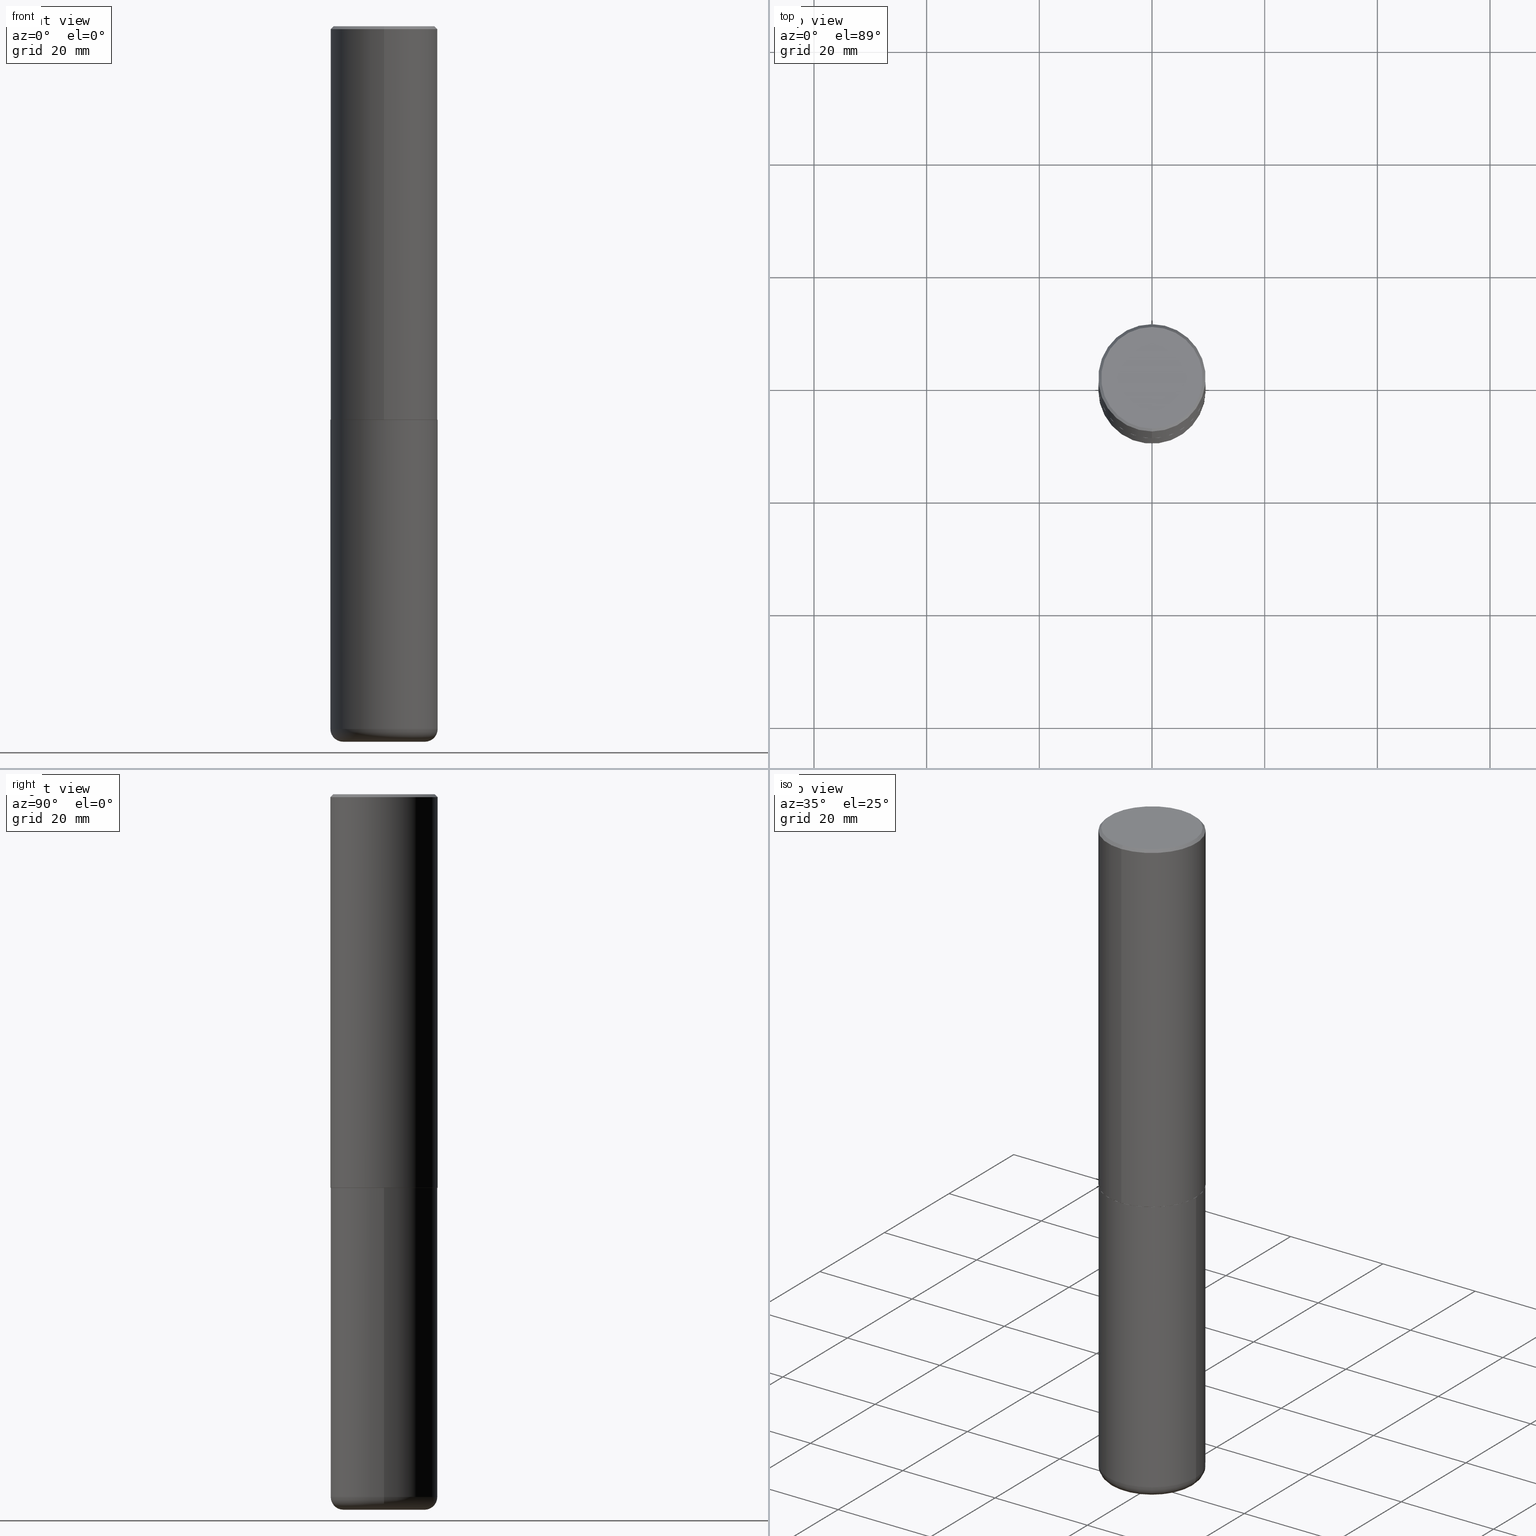
[diagram: canonical four-view strip — front | top / right | iso, engineering-drawing reading convention]
A machine part, canonical four-view strip (front | top / right | iso — engineering-drawing reading convention). The complete STEP part file that produces these views, byte-faithful:
ISO-10303-21;
HEADER;
FILE_DESCRIPTION (( 'STEP AP203' ),
    '1' );
FILE_NAME ('37663.STEP',
    '2024-03-02T07:26:09',
    ( '' ),
    ( '' ),
    'SwSTEP 2.0',
    'SolidWorks 2023',
    '' );
FILE_SCHEMA (( 'CONFIG_CONTROL_DESIGN' ));
ENDSEC;

DATA;
#1 = FACE_OUTER_BOUND ( 'NONE', #181, .T. ) ;
#2 = PERSON_AND_ORGANIZATION_ROLE ( 'classification_officer' ) ;
#3 = FACE_OUTER_BOUND ( 'NONE', #385, .T. ) ;
#4 = CIRCLE ( 'NONE', #298, 0.3749999999999999445 ) ;
#5 = APPLICATION_PROTOCOL_DEFINITION ( 'international standard', 'config_control_design', 1994, #372 ) ;
#6 = DATE_AND_TIME ( #167, #274 ) ;
#7 = EDGE_CURVE ( 'NONE', #184, #363, #131, .T. ) ;
#8 = EDGE_CURVE ( 'NONE', #18, #35, #85, .T. ) ;
#9 = CIRCLE ( 'NONE', #118, 0.3750000000000000555 ) ;
#10 = AXIS2_PLACEMENT_3D ( 'NONE', #96, #383, #347 ) ;
#11 = LINE ( 'NONE', #77, #50 ) ;
#12 = CARTESIAN_POINT ( 'NONE',  ( 0.000000000000000000, 0.000000000000000000, 0.000000000000000000 ) ) ;
#13 = ORIENTED_EDGE ( 'NONE', *, *, #394, .F. ) ;
#14 = EDGE_CURVE ( 'NONE', #66, #224, #158, .T. ) ;
#15 = LINE ( 'NONE', #266, #222 ) ;
#16 = AXIS2_PLACEMENT_3D ( 'NONE', #89, #29, #32 ) ;
#17 = DIRECTION ( 'NONE',  ( -6.982962677686265922E-15, -1.000000000000000000, 3.490662795793665557E-15 ) ) ;
#18 = VERTEX_POINT ( 'NONE', #108 ) ;
#19 = COORDINATED_UNIVERSAL_TIME_OFFSET ( 5, 0, .BEHIND. ) ;
#20 = DIRECTION ( 'NONE',  ( 2.446040391741596045E-29, -3.490662795793665557E-15, -1.000000000000000000 ) ) ;
#21 = CARTESIAN_POINT ( 'NONE',  ( -1.141397163745304909E-45, 1.628849886601155835E-31, 4.666305460853910467E-17 ) ) ;
#22 = EDGE_CURVE ( 'NONE', #35, #18, #391, .T. ) ;
#23 = PLANE ( 'NONE',  #286 ) ;
#24 = CLOSED_SHELL ( 'NONE', ( #53, #327, #251, #244, #393, #284, #55, #62 ) ) ;
#25 = DIRECTION ( 'NONE',  ( -2.445468806185136597E-29, 3.491481338843145583E-15, 1.000000000000000000 ) ) ;
#26 = EDGE_LOOP ( 'NONE', ( #341, #387, #160, #338 ) ) ;
#27 = DATE_AND_TIME ( #412, #370 ) ;
#28 = APPLICATION_PROTOCOL_DEFINITION ( 'international standard', 'config_control_design', 1994, #166 ) ;
#29 = DIRECTION ( 'NONE',  ( 2.438088387897960049E-29, -3.491481338843145188E-15, -1.000000000000000000 ) ) ;
#30 = ORIENTED_EDGE ( 'NONE', *, *, #349, .F. ) ;
#31 = DIRECTION ( 'NONE',  ( 1.000000000000000000, 0.000000000000000000, 0.000000000000000000 ) ) ;
#32 = DIRECTION ( 'NONE',  ( -1.000000000000000000, 6.982962677686265922E-15, -4.876176775795935793E-29 ) ) ;
#33 = ORIENTED_EDGE ( 'NONE', *, *, #136, .F. ) ;
#34 = CARTESIAN_POINT ( 'NONE',  ( 0.000000000000000000, 0.000000000000000000, 0.000000000000000000 ) ) ;
#35 = VERTEX_POINT ( 'NONE', #110 ) ;
#36 = CARTESIAN_POINT ( 'NONE',  ( -2.572686749164323547E-15, -0.3750000000000001110, -0.01999999999999877570 ) ) ;
#37 = AXIS2_PLACEMENT_3D ( 'NONE', #74, #46, #397 ) ;
#38 = COORDINATED_UNIVERSAL_TIME_OFFSET ( 5, 0, .BEHIND. ) ;
#39 = ORIENTED_EDGE ( 'NONE', *, *, #348, .F. ) ;
#40 = AXIS2_PLACEMENT_3D ( 'NONE', #311, #415, #388 ) ;
#41 = VERTEX_POINT ( 'NONE', #235 ) ;
#42 = CC_DESIGN_SECURITY_CLASSIFICATION ( #172, ( #200 ) ) ;
#43 = ORIENTED_EDGE ( 'NONE', *, *, #182, .T. ) ;
#44 = DIRECTION ( 'NONE',  ( 1.000000000000000000, -6.982962677686266711E-15, 4.876176775795935793E-29 ) ) ;
#45 = DIRECTION ( 'NONE',  ( -6.982962677686266711E-15, -1.000000000000000000, 3.490662795793665951E-15 ) ) ;
#46 = DIRECTION ( 'NONE',  ( -2.446040391741596606E-29, 3.490662795793665557E-15, 1.000000000000000000 ) ) ;
#47 = PERSON_AND_ORGANIZATION ( #192, #159 ) ;
#48 = PERSON_AND_ORGANIZATION ( #192, #159 ) ;
#49 = AXIS2_PLACEMENT_3D ( 'NONE', #21, #297, #17 ) ;
#50 = VECTOR ( 'NONE', #260, 39.37007874015748143 ) ;
#51 = VERTEX_POINT ( 'NONE', #199 ) ;
#52 = DIMENSIONAL_EXPONENTS ( 1.000000000000000000, 0.000000000000000000, 0.000000000000000000, 0.000000000000000000, 0.000000000000000000, 0.000000000000000000, 0.000000000000000000 ) ;
#53 = ADVANCED_FACE ( 'NONE', ( #272 ), #75, .T. ) ;
#54 = VERTEX_POINT ( 'NONE', #174 ) ;
#55 = ADVANCED_FACE ( 'NONE', ( #202 ), #237, .F. ) ;
#56 = ORIENTED_EDGE ( 'NONE', *, *, #163, .F. ) ;
#57 = DATE_TIME_ROLE ( 'classification_date' ) ;
#58 = CIRCLE ( 'NONE', #227, 0.3750000000000003886 ) ;
#59 =( NAMED_UNIT ( * ) SI_UNIT ( $, .STERADIAN. ) SOLID_ANGLE_UNIT ( ) );
#60 = DIRECTION ( 'NONE',  ( -2.445468806185136597E-29, 3.491481338843145583E-15, 1.000000000000000000 ) ) ;
#61 = EDGE_LOOP ( 'NONE', ( #194, #93 ) ) ;
#62 = ADVANCED_FACE ( 'NONE', ( #401 ), #269, .F. ) ;
#63 = DIRECTION ( 'NONE',  ( -2.446040391741596606E-29, 3.490662795793665557E-15, 1.000000000000000000 ) ) ;
#64 = AXIS2_PLACEMENT_3D ( 'NONE', #207, #337, #44 ) ;
#65 = EDGE_CURVE ( 'NONE', #325, #54, #58, .T. ) ;
#66 = VERTEX_POINT ( 'NONE', #149 ) ;
#67 = APPROVAL_STATUS ( 'not_yet_approved' ) ;
#68 = CIRCLE ( 'NONE', #335, 0.3750000000000003886 ) ;
#69 = EDGE_LOOP ( 'NONE', ( #39, #384, #81, #287 ) ) ;
#70 = EDGE_CURVE ( 'NONE', #35, #66, #404, .T. ) ;
#71 = COORDINATED_UNIVERSAL_TIME_OFFSET ( 5, 0, .BEHIND. ) ;
#72 = EDGE_LOOP ( 'NONE', ( #122, #259 ) ) ;
#73 = CARTESIAN_POINT ( 'NONE',  ( 4.892080783483214581E-31, -6.981325591587361238E-17, -0.02000000000000008715 ) ) ;
#74 = CARTESIAN_POINT ( 'NONE',  ( 4.892080783483214581E-31, -6.981325591587361238E-17, -0.02000000000000008715 ) ) ;
#75 = CONICAL_SURFACE ( 'NONE', #190, 0.3739999999999999991, 0.7853981633977213939 ) ;
#76 = ORIENTED_EDGE ( 'NONE', *, *, #350, .F. ) ;
#77 = CARTESIAN_POINT ( 'NONE',  ( 2.657429831742841742E-15, 0.3739999999999903957, -2.750000000000000888 ) ) ;
#78 = ORIENTED_EDGE ( 'NONE', *, *, #348, .T. ) ;
#79 = ADVANCED_FACE ( 'NONE', ( #240 ), #368, .T. ) ;
#80 = DIRECTION ( 'NONE',  ( -6.982962677686266711E-15, -1.000000000000000000, 2.921762560068730595E-15 ) ) ;
#81 = ORIENTED_EDGE ( 'NONE', *, *, #329, .T. ) ;
#82 = DIRECTION ( 'NONE',  ( -6.982962677686266711E-15, -1.000000000000000000, 2.921762560068730595E-15 ) ) ;
#83 = CARTESIAN_POINT ( 'NONE',  ( 6.726611077289389265E-29, -9.599322688432580971E-15, -2.750000000000000000 ) ) ;
#84 = COORDINATED_UNIVERSAL_TIME_OFFSET ( 5, 0, .BEHIND. ) ;
#85 = CIRCLE ( 'NONE', #254, 0.3549999999999999822 ) ;
#86 = CARTESIAN_POINT ( 'NONE',  ( 2.618611004132350411E-15, 0.3749999999999999445, -0.02000000000000139513 ) ) ;
#87 = DIRECTION ( 'NONE',  ( -2.446040391741596606E-29, 3.490662795793665557E-15, 1.000000000000000000 ) ) ;
#88 = APPROVAL_STATUS ( 'not_yet_approved' ) ;
#89 = CARTESIAN_POINT ( 'NONE',  ( 1.222734403092568523E-28, -1.745740669421572989E-14, -5.000000000000000000 ) ) ;
#90 = CIRCLE ( 'NONE', #220, 0.3739999999999999991 ) ;
#91 = APPROVAL ( #416, 'UNSPECIFIED' ) ;
#92 = AXIS2_PLACEMENT_3D ( 'NONE', #34, #310, #31 ) ;
#93 = ORIENTED_EDGE ( 'NONE', *, *, #8, .T. ) ;
#94 = DIRECTION ( 'NONE',  ( -2.446040391741596606E-29, 3.490662795793665557E-15, 1.000000000000000000 ) ) ;
#95 = EDGE_LOOP ( 'NONE', ( #154, #183, #97, #30 ) ) ;
#96 = CARTESIAN_POINT ( 'NONE',  ( 0.2850000000000000311, -1.913331773686043011E-14, -4.910000000000000142 ) ) ;
#97 = ORIENTED_EDGE ( 'NONE', *, *, #139, .F. ) ;
#98 = DIRECTION ( 'NONE',  ( 1.000000000000000000, -6.982962677686266711E-15, 4.876176775795935793E-29 ) ) ;
#99 = AXIS2_PLACEMENT_3D ( 'NONE', #239, #173, #111 ) ;
#100 = LOCAL_TIME ( 2, 26, 9.000000000000000000, #19 ) ;
#101 = APPROVAL_ROLE ( '' ) ;
#102 = LINE ( 'NONE', #225, #352 ) ;
#103 = CONICAL_SURFACE ( 'NONE', #369, 0.3750000000000000555, 0.7853981633974465026 ) ;
#104 = EDGE_CURVE ( 'NONE', #51, #362, #4, .T. ) ;
#105 = DIRECTION ( 'NONE',  ( -2.446040391741596606E-29, 3.490662795793665557E-15, 1.000000000000000000 ) ) ;
#106 = DIRECTION ( 'NONE',  ( -2.446040391741596606E-29, 3.490662795793665557E-15, 1.000000000000000000 ) ) ;
#107 = CARTESIAN_POINT ( 'NONE',  ( -0.3750000000000000555, -1.070783826866887333E-14, -2.750000000000000000 ) ) ;
#108 = CARTESIAN_POINT ( 'NONE',  ( -2.504081769186608216E-15, -0.3549999999999999822, 1.285848347115290366E-15 ) ) ;
#109 = VECTOR ( 'NONE', #214, 39.37007874015748143 ) ;
#110 = CARTESIAN_POINT ( 'NONE',  ( 2.548781377355487113E-15, 0.3549999999999999822, -1.192522237898212341E-15 ) ) ;
#111 = DIRECTION ( 'NONE',  ( 1.000000000000000000, -6.982962677686269077E-15, 4.883557194083113462E-29 ) ) ;
#112 = DIRECTION ( 'NONE',  ( 6.982962677686265922E-15, 1.000000000000000000, -3.490662795793665557E-15 ) ) ;
#113 = EDGE_CURVE ( 'NONE', #328, #155, #278, .T. ) ;
#114 = PERSON_AND_ORGANIZATION_ROLE ( 'creator' ) ;
#115 = CARTESIAN_POINT ( 'NONE',  ( 6.726611077289389265E-29, -9.599322688432580971E-15, -2.750000000000000000 ) ) ;
#116 = DIRECTION ( 'NONE',  ( -6.982962677686265922E-15, -1.000000000000000000, 2.913971193241877611E-15 ) ) ;
#117 = DIRECTION ( 'NONE',  ( -2.446040391741596606E-29, 3.490662795793665557E-15, 1.000000000000000000 ) ) ;
#118 = AXIS2_PLACEMENT_3D ( 'NONE', #262, #203, #332 ) ;
#119 = ORIENTED_EDGE ( 'NONE', *, *, #270, .T. ) ;
#120 =( CONVERSION_BASED_UNIT ( 'INCH', #304 ) LENGTH_UNIT ( ) NAMED_UNIT ( #52 ) );
#121 = FACE_OUTER_BOUND ( 'NONE', #72, .T. ) ;
#122 = ORIENTED_EDGE ( 'NONE', *, *, #7, .F. ) ;
#123 = CARTESIAN_POINT ( 'NONE',  ( 6.725039217009124520E-29, -9.601573681818649859E-15, -2.750000000000000000 ) ) ;
#124 = CC_DESIGN_PERSON_AND_ORGANIZATION_ASSIGNMENT ( #48, #114, ( #200 ) ) ;
#125 = CARTESIAN_POINT ( 'NONE',  ( 0.3750000000000000555, -1.222018468595100145E-14, -2.750000000000000000 ) ) ;
#126 = CIRCLE ( 'NONE', #40, 0.3749999999999999445 ) ;
#127 = ORIENTED_EDGE ( 'NONE', *, *, #294, .T. ) ;
#128 = FACE_OUTER_BOUND ( 'NONE', #26, .T. ) ;
#129 = DIRECTION ( 'NONE',  ( 1.000000000000000000, -6.982962677686266711E-15, 0.000000000000000000 ) ) ;
#130 = APPROVAL_DATE_TIME ( #27, #323 ) ;
#131 = CIRCLE ( 'NONE', #321, 0.2850000000000000311 ) ;
#132 = DATE_TIME_ROLE ( 'creation_date' ) ;
#133 = APPROVAL_PERSON_ORGANIZATION ( #354, #316, #195 ) ;
#134 = ORIENTED_EDGE ( 'NONE', *, *, #189, .F. ) ;
#135 = APPROVAL_DATE_TIME ( #6, #316 ) ;
#136 = EDGE_CURVE ( 'NONE', #41, #137, #90, .T. ) ;
#137 = VERTEX_POINT ( 'NONE', #152 ) ;
#138 = PRODUCT_DEFINITION_SHAPE ( 'NONE', 'NONE',  #343 ) ;
#139 = EDGE_CURVE ( 'NONE', #224, #66, #234, .T. ) ;
#140 = DIRECTION ( 'NONE',  ( -2.446040391741596606E-29, 3.490662795793665557E-15, 1.000000000000000000 ) ) ;
#141 = ORIENTED_EDGE ( 'NONE', *, *, #22, .F. ) ;
#142 = DIRECTION ( 'NONE',  ( -4.851104656540954809E-15, -0.7071067811865486830, -0.7071067811865463515 ) ) ;
#143 = MANIFOLD_SOLID_BREP ( 'Body-Move/Copy2[2]', #24 ) ;
#144 = ORIENTED_EDGE ( 'NONE', *, *, #113, .F. ) ;
#145 = CALENDAR_DATE ( 2024, 2, 3 ) ;
#146 = VECTOR ( 'NONE', #117, 39.37007874015748143 ) ;
#147 = DIRECTION ( 'NONE',  ( -6.982962677686266711E-15, -1.000000000000000000, 2.921762560068730595E-15 ) ) ;
#148 = PERSON_AND_ORGANIZATION ( #192, #159 ) ;
#149 = CARTESIAN_POINT ( 'NONE',  ( 2.618611004132350411E-15, 0.3749999999999999445, -0.02000000000000139513 ) ) ;
#150 = LINE ( 'NONE', #409, #146 ) ;
#151 = EDGE_LOOP ( 'NONE', ( #76, #33 ) ) ;
#152 = CARTESIAN_POINT ( 'NONE',  ( -2.611628041454596160E-15, -0.3740000000000096581, -2.749999999999998668 ) ) ;
#153 = ADVANCED_FACE ( 'NONE', ( #121 ), #247, .T. ) ;
#154 = ORIENTED_EDGE ( 'NONE', *, *, #65, .T. ) ;
#155 = VERTEX_POINT ( 'NONE', #125 ) ;
#156 = DIRECTION ( 'NONE',  ( 7.105427357601001859E-15, 1.000000000000000000, -3.491481338843145583E-15 ) ) ;
#157 = EDGE_LOOP ( 'NONE', ( #381, #78, #226, #346 ) ) ;
#158 = CIRCLE ( 'NONE', #37, 0.3750000000000000555 ) ;
#159 = ORGANIZATION ( 'UNSPECIFIED', 'UNSPECIFIED', '' ) ;
#160 = ORIENTED_EDGE ( 'NONE', *, *, #349, .T. ) ;
#161 = COORDINATED_UNIVERSAL_TIME_OFFSET ( 5, 0, .BEHIND. ) ;
#162 = DIRECTION ( 'NONE',  ( 2.446040391741596606E-29, -3.490662795793665557E-15, -1.000000000000000000 ) ) ;
#163 = EDGE_CURVE ( 'NONE', #362, #155, #248, .T. ) ;
#164 = CARTESIAN_POINT ( 'NONE',  ( 4.892080783483214581E-31, -6.981325591587361238E-17, -0.02000000000000008715 ) ) ;
#165 = VECTOR ( 'NONE', #293, 39.37007874015748143 ) ;
#166 = APPLICATION_CONTEXT ( 'configuration controlled 3d designs of mechanical parts and assemblies' ) ;
#167 = CALENDAR_DATE ( 2024, 2, 3 ) ;
#168 = LINE ( 'NONE', #232, #280 ) ;
#169 = CC_DESIGN_DATE_AND_TIME_ASSIGNMENT ( #319, #132, ( #343 ) ) ;
#170 = AXIS2_PLACEMENT_3D ( 'NONE', #177, #198, #326 ) ;
#171 = CIRCLE ( 'NONE', #398, 0.2850000000000000311 ) ;
#172 = SECURITY_CLASSIFICATION ( '', '', #339 ) ;
#173 = DIRECTION ( 'NONE',  ( -2.445468806185136597E-29, 3.491481338843145583E-15, 1.000000000000000000 ) ) ;
#174 = CARTESIAN_POINT ( 'NONE',  ( 2.664535259100411196E-15, 0.3749999999999907296, -2.749000000000000998 ) ) ;
#175 = FACE_OUTER_BOUND ( 'NONE', #95, .T. ) ;
#176 = CARTESIAN_POINT ( 'NONE',  ( 1.200725183836902132E-28, -1.714317337371984662E-14, -4.910000000000000142 ) ) ;
#177 = CARTESIAN_POINT ( 'NONE',  ( 1.200725183836902132E-28, -1.714317337371984662E-14, -4.910000000000000142 ) ) ;
#178 = CARTESIAN_POINT ( 'NONE',  ( 1.222734403092568523E-28, -1.745740669421572989E-14, -5.000000000000000000 ) ) ;
#179 = AXIS2_PLACEMENT_3D ( 'NONE', #318, #229, #98 ) ;
#180 = LOCAL_TIME ( 2, 26, 9.000000000000000000, #71 ) ;
#181 = EDGE_LOOP ( 'NONE', ( #357, #119, #288, #389 ) ) ;
#182 = EDGE_CURVE ( 'NONE', #363, #184, #171, .T. ) ;
#183 = ORIENTED_EDGE ( 'NONE', *, *, #410, .T. ) ;
#184 = VERTEX_POINT ( 'NONE', #277 ) ;
#185 = APPROVAL_ROLE ( '' ) ;
#186 = CARTESIAN_POINT ( 'NONE',  ( 6.725039217009124520E-29, -9.601573681818649859E-15, -2.750000000000000000 ) ) ;
#187 = AXIS2_PLACEMENT_3D ( 'NONE', #331, #20, #112 ) ;
#188 = DIRECTION ( 'NONE',  ( 1.000000000000000000, -6.982962677686266711E-15, 0.000000000000000000 ) ) ;
#189 = EDGE_CURVE ( 'NONE', #362, #51, #126, .T. ) ;
#190 = AXIS2_PLACEMENT_3D ( 'NONE', #83, #106, #147 ) ;
#191 = DIRECTION ( 'NONE',  ( 1.000000000000000000, -6.982962677686269077E-15, 0.000000000000000000 ) ) ;
#192 = PERSON ( 'UNSPECIFIED', 'UNSPECIFIED', 'UNSPECIFIED', ('UNSPECIFIED'), ('UNSPECIFIED'), ('UNSPECIFIED') ) ;
#193 = CYLINDRICAL_SURFACE ( 'NONE', #179, 0.3749999999999999445 ) ;
#194 = ORIENTED_EDGE ( 'NONE', *, *, #22, .T. ) ;
#195 = APPROVAL_ROLE ( '' ) ;
#196 = CONICAL_SURFACE ( 'NONE', #358, 0.3750000000000000555, 0.7853981633974465026 ) ;
#197 = ADVANCED_FACE ( 'NONE', ( #386 ), #193, .T. ) ;
#198 = DIRECTION ( 'NONE',  ( -2.445468806185136597E-29, 3.491481338843145583E-15, 1.000000000000000000 ) ) ;
#199 = CARTESIAN_POINT ( 'NONE',  ( -0.3749999999999999445, -1.447863811461947092E-14, -4.910000000000000142 ) ) ;
#200 = PRODUCT_DEFINITION_FORMATION_WITH_SPECIFIED_SOURCE ( 'ANY', '', #261, .NOT_KNOWN. ) ;
#201 = FACE_OUTER_BOUND ( 'NONE', #334, .T. ) ;
#202 = FACE_OUTER_BOUND ( 'NONE', #151, .T. ) ;
#203 = DIRECTION ( 'NONE',  ( -2.445468806185136597E-29, 3.491481338843145583E-15, 1.000000000000000000 ) ) ;
#204 = DIRECTION ( 'NONE',  ( -2.446040391741596606E-29, 3.490662795793665557E-15, 1.000000000000000000 ) ) ;
#205 = CARTESIAN_POINT ( 'NONE',  ( 0.3749999999999999445, -1.976178437785219664E-14, -4.910000000000000142 ) ) ;
#206 = CARTESIAN_POINT ( 'NONE',  ( 6.726611077289389265E-29, -9.599322688432580971E-15, -2.750000000000000000 ) ) ;
#207 = CARTESIAN_POINT ( 'NONE',  ( 0.000000000000000000, 0.000000000000000000, 0.000000000000000000 ) ) ;
#208 = PERSON_AND_ORGANIZATION ( #192, #159 ) ;
#209 = DIRECTION ( 'NONE',  ( -1.000000000000000000, 7.105427357600996337E-15, 0.000000000000000000 ) ) ;
#210 = CC_DESIGN_DATE_AND_TIME_ASSIGNMENT ( #302, #57, ( #172 ) ) ;
#211 = EDGE_CURVE ( 'NONE', #51, #328, #359, .T. ) ;
#212 = ORIENTED_EDGE ( 'NONE', *, *, #104, .F. ) ;
#213 = CYLINDRICAL_SURFACE ( 'NONE', #407, 0.3750000000000002220 ) ;
#214 = DIRECTION ( 'NONE',  ( -2.445468806185136877E-29, 3.491481338843145188E-15, 1.000000000000000000 ) ) ;
#215 = ORIENTED_EDGE ( 'NONE', *, *, #104, .T. ) ;
#216 = DIRECTION ( 'NONE',  ( -1.000000000000000000, 6.982962677686265922E-15, -4.876176775795935793E-29 ) ) ;
#217 = CC_DESIGN_PERSON_AND_ORGANIZATION_ASSIGNMENT ( #313, #279, ( #261 ) ) ;
#218 = CARTESIAN_POINT ( 'NONE',  ( -0.2850000000000000311, -1.495549900595945556E-14, -5.000000000000000000 ) ) ;
#219 = EDGE_LOOP ( 'NONE', ( #375, #314, #303, #56 ) ) ;
#220 = AXIS2_PLACEMENT_3D ( 'NONE', #253, #63, #305 ) ;
#221 = CIRCLE ( 'NONE', #308, 0.08999999999999992728 ) ;
#222 = VECTOR ( 'NONE', #395, 39.37007874015748143 ) ;
#223 = ORIENTED_EDGE ( 'NONE', *, *, #70, .T. ) ;
#224 = VERTEX_POINT ( 'NONE', #36 ) ;
#225 = CARTESIAN_POINT ( 'NONE',  ( -2.572686749164323547E-15, -0.3750000000000001110, -0.01999999999999877570 ) ) ;
#226 = ORIENTED_EDGE ( 'NONE', *, *, #65, .F. ) ;
#227 = AXIS2_PLACEMENT_3D ( 'NONE', #230, #361, #116 ) ;
#228 = CIRCLE ( 'NONE', #255, 0.3739999999999999991 ) ;
#229 = DIRECTION ( 'NONE',  ( -2.445468806185136597E-29, 3.491481338843145583E-15, 1.000000000000000000 ) ) ;
#230 = CARTESIAN_POINT ( 'NONE',  ( 6.724165036897648492E-29, -9.595832025636787455E-15, -2.749000000000000110 ) ) ;
#231 = ORIENTED_EDGE ( 'NONE', *, *, #14, .T. ) ;
#232 = CARTESIAN_POINT ( 'NONE',  ( -2.611628041454596160E-15, -0.3740000000000096581, -2.749999999999998668 ) ) ;
#233 = ORIENTED_EDGE ( 'NONE', *, *, #7, .T. ) ;
#234 = CIRCLE ( 'NONE', #285, 0.3750000000000000555 ) ;
#235 = CARTESIAN_POINT ( 'NONE',  ( 2.660982545421643429E-15, 0.3739999999999903957, -2.750000000000000888 ) ) ;
#236 = CYLINDRICAL_SURFACE ( 'NONE', #322, 0.3750000000000002220 ) ;
#237 = PLANE ( 'NONE',  #307 ) ;
#238 = SHAPE_DEFINITION_REPRESENTATION ( #138, #306 ) ;
#239 = CARTESIAN_POINT ( 'NONE',  ( 1.200725183836902132E-28, -1.714317337371984662E-14, -4.910000000000000142 ) ) ;
#240 = FACE_OUTER_BOUND ( 'NONE', #312, .T. ) ;
#241 = CC_DESIGN_PERSON_AND_ORGANIZATION_ASSIGNMENT ( #257, #390, ( #343 ) ) ;
#242 = CONICAL_SURFACE ( 'NONE', #290, 0.3739999999999999991, 0.7853981633977213939 ) ;
#243 = CIRCLE ( 'NONE', #10, 0.08999999999999992728 ) ;
#244 = ADVANCED_FACE ( 'NONE', ( #3 ), #196, .T. ) ;
#245 = EDGE_LOOP ( 'NONE', ( #13, #43, #344, #212 ) ) ;
#246 = DIRECTION ( 'NONE',  ( -6.982962677686265922E-15, -1.000000000000000000, 2.913971193241877611E-15 ) ) ;
#247 = PLANE ( 'NONE',  #16 ) ;
#248 = LINE ( 'NONE', #378, #109 ) ;
#249 = ORIENTED_EDGE ( 'NONE', *, *, #211, .F. ) ;
#250 = CC_DESIGN_APPROVAL ( #91, ( #200 ) ) ;
#251 = ADVANCED_FACE ( 'NONE', ( #1 ), #103, .T. ) ;
#252 = CARTESIAN_POINT ( 'NONE',  ( -0.2850000000000000311, -1.511812657680356008E-14, -4.910000000000000142 ) ) ;
#253 = CARTESIAN_POINT ( 'NONE',  ( 6.726611077289389265E-29, -9.599322688432580971E-15, -2.750000000000000000 ) ) ;
#254 = AXIS2_PLACEMENT_3D ( 'NONE', #264, #204, #301 ) ;
#255 = AXIS2_PLACEMENT_3D ( 'NONE', #400, #365, #82 ) ;
#256 = DIRECTION ( 'NONE',  ( 6.982962677686265922E-15, 1.000000000000000000, -3.494488891895536035E-15 ) ) ;
#257 = PERSON_AND_ORGANIZATION ( #192, #159 ) ;
#258 = AXIS2_PLACEMENT_3D ( 'NONE', #186, #25, #129 ) ;
#259 = ORIENTED_EDGE ( 'NONE', *, *, #182, .F. ) ;
#260 = DIRECTION ( 'NONE',  ( 5.024295867789434219E-15, 0.7071067811867430830, 0.7071067811863519514 ) ) ;
#261 = PRODUCT ( '37663', '37663', '', ( #414 ) ) ;
#262 = CARTESIAN_POINT ( 'NONE',  ( 6.725039217009124520E-29, -9.601573681818649859E-15, -2.750000000000000000 ) ) ;
#263 = DIRECTION ( 'NONE',  ( 1.000000000000000000, -6.982962677686266711E-15, 0.000000000000000000 ) ) ;
#264 = CARTESIAN_POINT ( 'NONE',  ( -1.141397163745304909E-45, 1.628849886601155835E-31, 4.666305460853910467E-17 ) ) ;
#265 = CC_DESIGN_APPROVAL ( #316, ( #343 ) ) ;
#266 = CARTESIAN_POINT ( 'NONE',  ( -2.618611004132351594E-15, -0.3750000000000002220, 1.308998548422625521E-15 ) ) ;
#267 = DIRECTION ( 'NONE',  ( -6.982962677686265922E-15, -1.000000000000000000, 3.490662795793665557E-15 ) ) ;
#268 = PERSON_AND_ORGANIZATION ( #192, #159 ) ;
#269 = PLANE ( 'NONE',  #187 ) ;
#270 = EDGE_CURVE ( 'NONE', #18, #224, #102, .T. ) ;
#271 = FACE_OUTER_BOUND ( 'NONE', #366, .T. ) ;
#272 = FACE_OUTER_BOUND ( 'NONE', #157, .T. ) ;
#273 = TOROIDAL_SURFACE ( 'NONE', #99, 0.2850000000000000311, 0.08999999999999989952 ) ;
#274 = LOCAL_TIME ( 2, 26, 9.000000000000000000, #38 ) ;
#275 = CARTESIAN_POINT ( 'NONE',  ( 4.892080783483214581E-31, -6.981325591587361238E-17, -0.02000000000000008715 ) ) ;
#276 = MANIFOLD_SOLID_BREP ( 'Body-Move/Copy2[1]', #406 ) ;
#277 = CARTESIAN_POINT ( 'NONE',  ( 0.2850000000000000311, -1.944755105735631653E-14, -5.000000000000000000 ) ) ;
#278 = CIRCLE ( 'NONE', #258, 0.3750000000000000555 ) ;
#279 = PERSON_AND_ORGANIZATION_ROLE ( 'design_owner' ) ;
#280 = VECTOR ( 'NONE', #296, 39.37007874015748143 ) ;
#281 = DIRECTION ( 'NONE',  ( 2.446040391741596606E-29, -3.490662795793665557E-15, -1.000000000000000000 ) ) ;
#282 = PRODUCT_RELATED_PRODUCT_CATEGORY ( 'detail', '', ( #261 ) ) ;
#283 = APPROVAL_DATE_TIME ( #405, #91 ) ;
#284 = ADVANCED_FACE ( 'NONE', ( #403 ), #242, .T. ) ;
#285 = AXIS2_PLACEMENT_3D ( 'NONE', #275, #94, #411 ) ;
#286 = AXIS2_PLACEMENT_3D ( 'NONE', #123, #377, #216 ) ;
#287 = ORIENTED_EDGE ( 'NONE', *, *, #417, .F. ) ;
#288 = ORIENTED_EDGE ( 'NONE', *, *, #139, .T. ) ;
#289 = UNCERTAINTY_MEASURE_WITH_UNIT (LENGTH_MEASURE( 1.000000000000000082E-05 ), #120, 'distance_accuracy_value', 'NONE');
#290 = AXIS2_PLACEMENT_3D ( 'NONE', #115, #140, #80 ) ;
#291 = APPROVAL_PERSON_ORGANIZATION ( #268, #323, #185 ) ;
#292 = CARTESIAN_POINT ( 'NONE',  ( -2.618611004132284935E-15, -0.3750000000000099920, -2.748999999999999222 ) ) ;
#293 = DIRECTION ( 'NONE',  ( 4.937700262164538576E-15, 0.7071067811865437980, -0.7071067811865512365 ) ) ;
#294 = EDGE_CURVE ( 'NONE', #155, #328, #9, .T. ) ;
#295 = DIRECTION ( 'NONE',  ( -2.445468806185136597E-29, 3.491481338843145583E-15, 1.000000000000000000 ) ) ;
#296 = DIRECTION ( 'NONE',  ( -4.937700262165896205E-15, -0.7071067811867381980, 0.7071067811863568364 ) ) ;
#297 = DIRECTION ( 'NONE',  ( -2.446040391741596606E-29, 3.490662795793665557E-15, 1.000000000000000000 ) ) ;
#298 = AXIS2_PLACEMENT_3D ( 'NONE', #176, #295, #191 ) ;
#299 = CC_DESIGN_APPROVAL ( #323, ( #172 ) ) ;
#300 = PERSON_AND_ORGANIZATION_ROLE ( 'design_supplier' ) ;
#301 = DIRECTION ( 'NONE',  ( -6.982962677686265922E-15, -1.000000000000000000, 3.490662795793665557E-15 ) ) ;
#302 = DATE_AND_TIME ( #376, #100 ) ;
#303 = ORIENTED_EDGE ( 'NONE', *, *, #294, .F. ) ;
#304 = LENGTH_MEASURE_WITH_UNIT ( LENGTH_MEASURE( 0.02539999999999999897 ), #342 );
#305 = DIRECTION ( 'NONE',  ( -6.982962677686266711E-15, -1.000000000000000000, 2.921762560068730595E-15 ) ) ;
#306 = ADVANCED_BREP_SHAPE_REPRESENTATION ( '37663', ( #276, #143, #92 ), #379 ) ;
#307 = AXIS2_PLACEMENT_3D ( 'NONE', #206, #364, #267 ) ;
#308 = AXIS2_PLACEMENT_3D ( 'NONE', #252, #156, #209 ) ;
#309 = ADVANCED_FACE ( 'NONE', ( #396 ), #351, .T. ) ;
#310 = DIRECTION ( 'NONE',  ( 0.000000000000000000, 0.000000000000000000, 1.000000000000000000 ) ) ;
#311 = CARTESIAN_POINT ( 'NONE',  ( 1.200725183836902132E-28, -1.714317337371984662E-14, -4.910000000000000142 ) ) ;
#312 = EDGE_LOOP ( 'NONE', ( #249, #215, #336, #144 ) ) ;
#313 = PERSON_AND_ORGANIZATION ( #192, #159 ) ;
#314 = ORIENTED_EDGE ( 'NONE', *, *, #211, .T. ) ;
#315 = VECTOR ( 'NONE', #324, 39.37007874015748143 ) ;
#316 = APPROVAL ( #67, 'UNSPECIFIED' ) ;
#317 = ADVANCED_FACE ( 'NONE', ( #201 ), #273, .T. ) ;
#318 = CARTESIAN_POINT ( 'NONE',  ( 0.000000000000000000, 0.000000000000000000, 0.000000000000000000 ) ) ;
#319 = DATE_AND_TIME ( #145, #180 ) ;
#320 = DIRECTION ( 'NONE',  ( 6.982962677686265922E-15, 1.000000000000000000, -3.494488891895536035E-15 ) ) ;
#321 = AXIS2_PLACEMENT_3D ( 'NONE', #178, #399, #263 ) ;
#322 = AXIS2_PLACEMENT_3D ( 'NONE', #12, #105, #45 ) ;
#323 = APPROVAL ( #88, 'UNSPECIFIED' ) ;
#324 = DIRECTION ( 'NONE',  ( -2.445468806185136877E-29, 3.491481338843145188E-15, 1.000000000000000000 ) ) ;
#325 = VERTEX_POINT ( 'NONE', #292 ) ;
#326 = DIRECTION ( 'NONE',  ( 1.000000000000000000, -6.982962677686269077E-15, 4.883557194083113462E-29 ) ) ;
#327 = ADVANCED_FACE ( 'NONE', ( #175 ), #236, .T. ) ;
#328 = VERTEX_POINT ( 'NONE', #107 ) ;
#329 = EDGE_CURVE ( 'NONE', #137, #325, #168, .T. ) ;
#330 = ORIENTED_EDGE ( 'NONE', *, *, #382, .F. ) ;
#331 = CARTESIAN_POINT ( 'NONE',  ( 2.478951750578624209E-15, 0.3549999999999999822, -1.215853765202481601E-15 ) ) ;
#332 = DIRECTION ( 'NONE',  ( 1.000000000000000000, -6.982962677686266711E-15, 0.000000000000000000 ) ) ;
#333 = ORIENTED_EDGE ( 'NONE', *, *, #270, .F. ) ;
#334 = EDGE_LOOP ( 'NONE', ( #233, #380, #134, #330 ) ) ;
#335 = AXIS2_PLACEMENT_3D ( 'NONE', #340, #413, #246 ) ;
#336 = ORIENTED_EDGE ( 'NONE', *, *, #163, .T. ) ;
#337 = DIRECTION ( 'NONE',  ( -2.445468806185136597E-29, 3.491481338843145583E-15, 1.000000000000000000 ) ) ;
#338 = ORIENTED_EDGE ( 'NONE', *, *, #14, .F. ) ;
#339 = SECURITY_CLASSIFICATION_LEVEL ( 'unclassified' ) ;
#340 = CARTESIAN_POINT ( 'NONE',  ( 6.724165036897648492E-29, -9.595832025636787455E-15, -2.749000000000000110 ) ) ;
#341 = ORIENTED_EDGE ( 'NONE', *, *, #410, .F. ) ;
#342 =( LENGTH_UNIT ( ) NAMED_UNIT ( * ) SI_UNIT ( $, .METRE. ) );
#343 = PRODUCT_DEFINITION ( 'UNKNOWN', '', #200, #356 ) ;
#344 = ORIENTED_EDGE ( 'NONE', *, *, #382, .T. ) ;
#345 = CARTESIAN_POINT ( 'NONE',  ( 1.222734403092568523E-28, -1.745740669421572989E-14, -5.000000000000000000 ) ) ;
#346 = ORIENTED_EDGE ( 'NONE', *, *, #329, .F. ) ;
#347 = DIRECTION ( 'NONE',  ( 1.000000000000000000, -6.982962677686273810E-15, 0.000000000000000000 ) ) ;
#348 = EDGE_CURVE ( 'NONE', #41, #54, #11, .T. ) ;
#349 = EDGE_CURVE ( 'NONE', #325, #224, #15, .T. ) ;
#350 = EDGE_CURVE ( 'NONE', #137, #41, #228, .T. ) ;
#351 = TOROIDAL_SURFACE ( 'NONE', #170, 0.2850000000000000311, 0.08999999999999989952 ) ;
#352 = VECTOR ( 'NONE', #142, 39.37007874015748143 ) ;
#353 = APPROVAL_PERSON_ORGANIZATION ( #47, #91, #101 ) ;
#354 = PERSON_AND_ORGANIZATION ( #192, #159 ) ;
#355 = CARTESIAN_POINT ( 'NONE',  ( -0.3749999999999999445, 2.664535259100375303E-15, -1.844600658845589318E-29 ) ) ;
#356 = DESIGN_CONTEXT ( 'detailed design', #372, 'design' ) ;
#357 = ORIENTED_EDGE ( 'NONE', *, *, #8, .F. ) ;
#358 = AXIS2_PLACEMENT_3D ( 'NONE', #73, #281, #320 ) ;
#359 = LINE ( 'NONE', #355, #315 ) ;
#360 = CC_DESIGN_PERSON_AND_ORGANIZATION_ASSIGNMENT ( #148, #2, ( #172 ) ) ;
#361 = DIRECTION ( 'NONE',  ( -2.446040391741596606E-29, 3.490662795793665557E-15, 1.000000000000000000 ) ) ;
#362 = VERTEX_POINT ( 'NONE', #205 ) ;
#363 = VERTEX_POINT ( 'NONE', #218 ) ;
#364 = DIRECTION ( 'NONE',  ( -2.446040391741596045E-29, 3.490662795793665557E-15, 1.000000000000000000 ) ) ;
#365 = DIRECTION ( 'NONE',  ( -2.446040391741596606E-29, 3.490662795793665557E-15, 1.000000000000000000 ) ) ;
#366 = EDGE_LOOP ( 'NONE', ( #127, #408 ) ) ;
#367 = ADVANCED_FACE ( 'NONE', ( #271 ), #23, .F. ) ;
#368 = CYLINDRICAL_SURFACE ( 'NONE', #64, 0.3749999999999999445 ) ;
#369 = AXIS2_PLACEMENT_3D ( 'NONE', #164, #162, #256 ) ;
#370 = LOCAL_TIME ( 2, 26, 9.000000000000000000, #161 ) ;
#371 = CARTESIAN_POINT ( 'NONE',  ( 0.000000000000000000, 0.000000000000000000, 0.000000000000000000 ) ) ;
#372 = APPLICATION_CONTEXT ( 'configuration controlled 3d designs of mechanical parts and assemblies' ) ;
#373 =( NAMED_UNIT ( * ) PLANE_ANGLE_UNIT ( ) SI_UNIT ( $, .RADIAN. ) );
#374 = CC_DESIGN_PERSON_AND_ORGANIZATION_ASSIGNMENT ( #208, #300, ( #200 ) ) ;
#375 = ORIENTED_EDGE ( 'NONE', *, *, #189, .T. ) ;
#376 = CALENDAR_DATE ( 2024, 2, 3 ) ;
#377 = DIRECTION ( 'NONE',  ( 2.438088387897960049E-29, -3.491481338843145188E-15, -1.000000000000000000 ) ) ;
#378 = CARTESIAN_POINT ( 'NONE',  ( 0.3749999999999999445, -2.618611004132349622E-15, 1.828566290923475642E-29 ) ) ;
#379 =( GEOMETRIC_REPRESENTATION_CONTEXT ( 3 ) GLOBAL_UNCERTAINTY_ASSIGNED_CONTEXT ( ( #289 ) ) GLOBAL_UNIT_ASSIGNED_CONTEXT ( ( #120, #373, #59 ) ) REPRESENTATION_CONTEXT ( 'NONE', 'WORKASPACE' ) );
#380 = ORIENTED_EDGE ( 'NONE', *, *, #394, .T. ) ;
#381 = ORIENTED_EDGE ( 'NONE', *, *, #350, .T. ) ;
#382 = EDGE_CURVE ( 'NONE', #184, #362, #243, .T. ) ;
#383 = DIRECTION ( 'NONE',  ( -6.982962677686266711E-15, -1.000000000000000000, 3.491481338843145583E-15 ) ) ;
#384 = ORIENTED_EDGE ( 'NONE', *, *, #136, .T. ) ;
#385 = EDGE_LOOP ( 'NONE', ( #333, #141, #223, #231 ) ) ;
#386 = FACE_OUTER_BOUND ( 'NONE', #219, .T. ) ;
#387 = ORIENTED_EDGE ( 'NONE', *, *, #417, .T. ) ;
#388 = DIRECTION ( 'NONE',  ( 1.000000000000000000, -6.982962677686269077E-15, 0.000000000000000000 ) ) ;
#389 = ORIENTED_EDGE ( 'NONE', *, *, #70, .F. ) ;
#390 = PERSON_AND_ORGANIZATION_ROLE ( 'creator' ) ;
#391 = CIRCLE ( 'NONE', #49, 0.3549999999999999822 ) ;
#392 = LOCAL_TIME ( 2, 26, 9.000000000000000000, #84 ) ;
#393 = ADVANCED_FACE ( 'NONE', ( #128 ), #213, .T. ) ;
#394 = EDGE_CURVE ( 'NONE', #363, #51, #221, .T. ) ;
#395 = DIRECTION ( 'NONE',  ( -2.446040391741596606E-29, 3.490662795793665557E-15, 1.000000000000000000 ) ) ;
#396 = FACE_OUTER_BOUND ( 'NONE', #245, .T. ) ;
#397 = DIRECTION ( 'NONE',  ( -6.982962677686265922E-15, -1.000000000000000000, 3.494488891895536035E-15 ) ) ;
#398 = AXIS2_PLACEMENT_3D ( 'NONE', #345, #60, #188 ) ;
#399 = DIRECTION ( 'NONE',  ( -2.445468806185136597E-29, 3.491481338843145583E-15, 1.000000000000000000 ) ) ;
#400 = CARTESIAN_POINT ( 'NONE',  ( 6.726611077289389265E-29, -9.599322688432580971E-15, -2.750000000000000000 ) ) ;
#401 = FACE_OUTER_BOUND ( 'NONE', #61, .T. ) ;
#402 = CALENDAR_DATE ( 2024, 2, 3 ) ;
#403 = FACE_OUTER_BOUND ( 'NONE', #69, .T. ) ;
#404 = LINE ( 'NONE', #86, #165 ) ;
#405 = DATE_AND_TIME ( #402, #392 ) ;
#406 = CLOSED_SHELL ( 'NONE', ( #197, #317, #367, #79, #309, #153 ) ) ;
#407 = AXIS2_PLACEMENT_3D ( 'NONE', #371, #87, #418 ) ;
#408 = ORIENTED_EDGE ( 'NONE', *, *, #113, .T. ) ;
#409 = CARTESIAN_POINT ( 'NONE',  ( 2.664535259100376880E-15, 0.3750000000000002220, -1.308998548422625521E-15 ) ) ;
#410 = EDGE_CURVE ( 'NONE', #54, #66, #150, .T. ) ;
#411 = DIRECTION ( 'NONE',  ( -6.982962677686265922E-15, -1.000000000000000000, 3.494488891895536035E-15 ) ) ;
#412 = CALENDAR_DATE ( 2024, 2, 3 ) ;
#413 = DIRECTION ( 'NONE',  ( -2.446040391741596606E-29, 3.490662795793665557E-15, 1.000000000000000000 ) ) ;
#414 = MECHANICAL_CONTEXT ( 'NONE', #166, 'mechanical' ) ;
#415 = DIRECTION ( 'NONE',  ( -2.445468806185136597E-29, 3.491481338843145583E-15, 1.000000000000000000 ) ) ;
#416 = APPROVAL_STATUS ( 'not_yet_approved' ) ;
#417 = EDGE_CURVE ( 'NONE', #54, #325, #68, .T. ) ;
#418 = DIRECTION ( 'NONE',  ( -6.982962677686266711E-15, -1.000000000000000000, 3.490662795793665951E-15 ) ) ;
ENDSEC;
END-ISO-10303-21;
